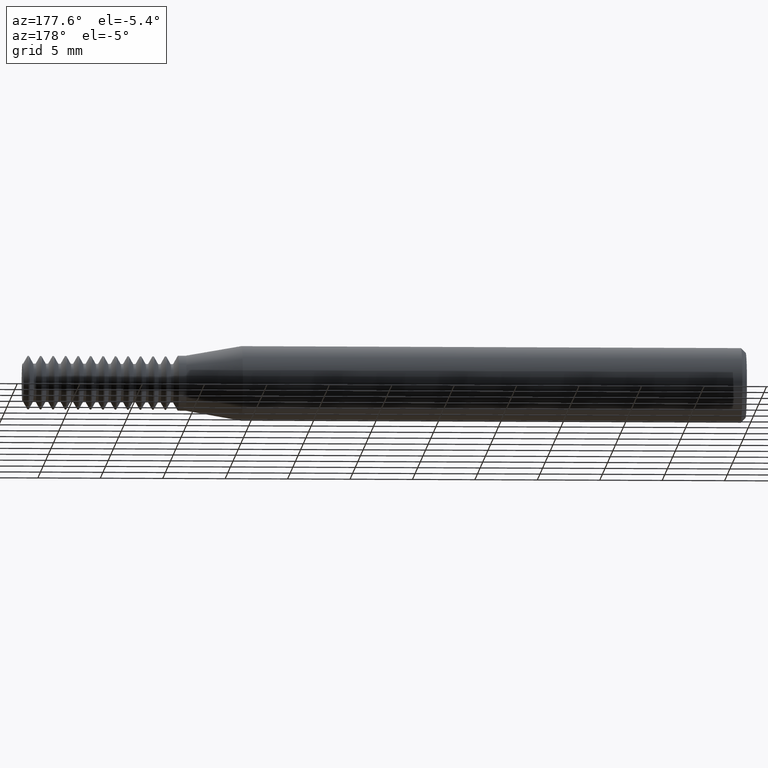
[diagram: clean part render]
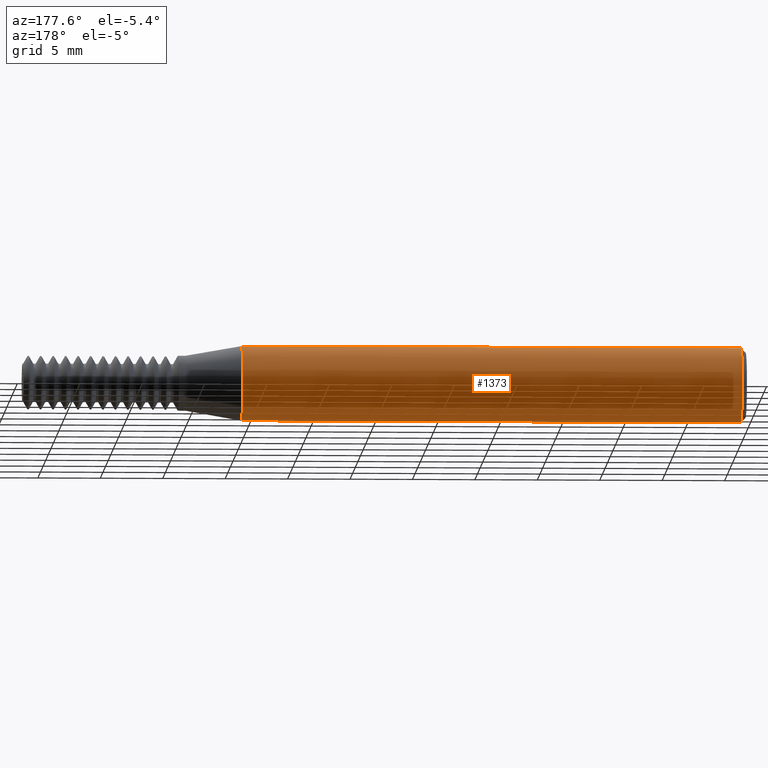
[diagram: same view with one face highlighted and labeled with its STEP entity id]
A machine part, auxiliary view. The second image highlights one B-rep face of the part: STEP entity #1373.
In plain terms, the highlighted cylindrical surface (partial cylindrical patch) has radius 2.9972 mm, axis along (1, -0, -0).
Its self-contained STEP definition (entity closure, byte-faithful):
#38 = VERTEX_POINT ( 'NONE', #1970 ) ;
#66 = CYLINDRICAL_SURFACE ( 'NONE', #2417, 0.1179999999999999938 ) ;
#68 = VERTEX_POINT ( 'NONE', #1514 ) ;
#99 = EDGE_CURVE ( 'NONE', #38, #2177, #1125, .T. ) ;
#158 = CARTESIAN_POINT ( 'NONE',  ( 1.589999999999999636, 0.0000000000000000000, 0.0000000000000000000 ) ) ;
#162 = EDGE_CURVE ( 'NONE', #68, #2177, #529, .T. ) ;
#292 = AXIS2_PLACEMENT_3D ( 'NONE', #1599, #554, #1833 ) ;
#306 = DIRECTION ( 'NONE',  ( 1.000000000000000000, -0.0000000000000000000, -0.0000000000000000000 ) ) ;
#358 = DIRECTION ( 'NONE',  ( 0.0000000000000000000, 0.0000000000000000000, -1.000000000000000000 ) ) ;
#524 = CARTESIAN_POINT ( 'NONE',  ( 2.279999999999999805, 1.445083222993876666E-17, 0.1179999999999999938 ) ) ;
#529 = CIRCLE ( 'NONE', #1376, 0.1179999999999999938 ) ;
#554 = DIRECTION ( 'NONE',  ( 1.000000000000000000, -0.0000000000000000000, -0.0000000000000000000 ) ) ;
#563 = VECTOR ( 'NONE', #306, 39.37007874015748143 ) ;
#584 = ORIENTED_EDGE ( 'NONE', *, *, #626, .F. ) ;
#609 = DIRECTION ( 'NONE',  ( 1.000000000000000000, -0.0000000000000000000, -0.0000000000000000000 ) ) ;
#626 = EDGE_CURVE ( 'NONE', #2294, #68, #2145, .T. ) ;
#773 = DIRECTION ( 'NONE',  ( 0.0000000000000000000, 0.0000000000000000000, -1.000000000000000000 ) ) ;
#781 = CARTESIAN_POINT ( 'NONE',  ( 2.279999999999999805, 0.0000000000000000000, -0.1179999999999999938 ) ) ;
#1125 = LINE ( 'NONE', #524, #563 ) ;
#1232 = EDGE_CURVE ( 'NONE', #2294, #38, #1286, .T. ) ;
#1286 = CIRCLE ( 'NONE', #292, 0.1179999999999999938 ) ;
#1373 = ADVANCED_FACE ( 'NONE', ( #2529 ), #66, .T. ) ;
#1376 = AXIS2_PLACEMENT_3D ( 'NONE', #158, #2071, #358 ) ;
#1449 = ORIENTED_EDGE ( 'NONE', *, *, #1232, .T. ) ;
#1467 = EDGE_LOOP ( 'NONE', ( #1449, #1487, #2120, #584 ) ) ;
#1487 = ORIENTED_EDGE ( 'NONE', *, *, #99, .T. ) ;
#1514 = CARTESIAN_POINT ( 'NONE',  ( 1.589999999999999636, 0.0000000000000000000, -0.1179999999999999938 ) ) ;
#1599 = CARTESIAN_POINT ( 'NONE',  ( 0.01500000000000052333, 0.0000000000000000000, 0.0000000000000000000 ) ) ;
#1706 = VECTOR ( 'NONE', #2298, 39.37007874015748143 ) ;
#1833 = DIRECTION ( 'NONE',  ( 0.0000000000000000000, 0.0000000000000000000, 1.000000000000000000 ) ) ;
#1907 = CARTESIAN_POINT ( 'NONE',  ( 2.279999999999999805, 0.0000000000000000000, 0.0000000000000000000 ) ) ;
#1970 = CARTESIAN_POINT ( 'NONE',  ( 0.01500000000000052333, 1.445083222993876666E-17, 0.1179999999999999938 ) ) ;
#2071 = DIRECTION ( 'NONE',  ( 1.000000000000000000, -0.0000000000000000000, -0.0000000000000000000 ) ) ;
#2120 = ORIENTED_EDGE ( 'NONE', *, *, #162, .F. ) ;
#2145 = LINE ( 'NONE', #781, #1706 ) ;
#2177 = VERTEX_POINT ( 'NONE', #2587 ) ;
#2215 = CARTESIAN_POINT ( 'NONE',  ( 0.01500000000000052333, 0.0000000000000000000, -0.1179999999999999938 ) ) ;
#2294 = VERTEX_POINT ( 'NONE', #2215 ) ;
#2298 = DIRECTION ( 'NONE',  ( 1.000000000000000000, -0.0000000000000000000, -0.0000000000000000000 ) ) ;
#2417 = AXIS2_PLACEMENT_3D ( 'NONE', #1907, #609, #773 ) ;
#2529 = FACE_OUTER_BOUND ( 'NONE', #1467, .T. ) ;
#2587 = CARTESIAN_POINT ( 'NONE',  ( 1.589999999999999636, 1.445083222993876666E-17, 0.1179999999999999938 ) ) ;